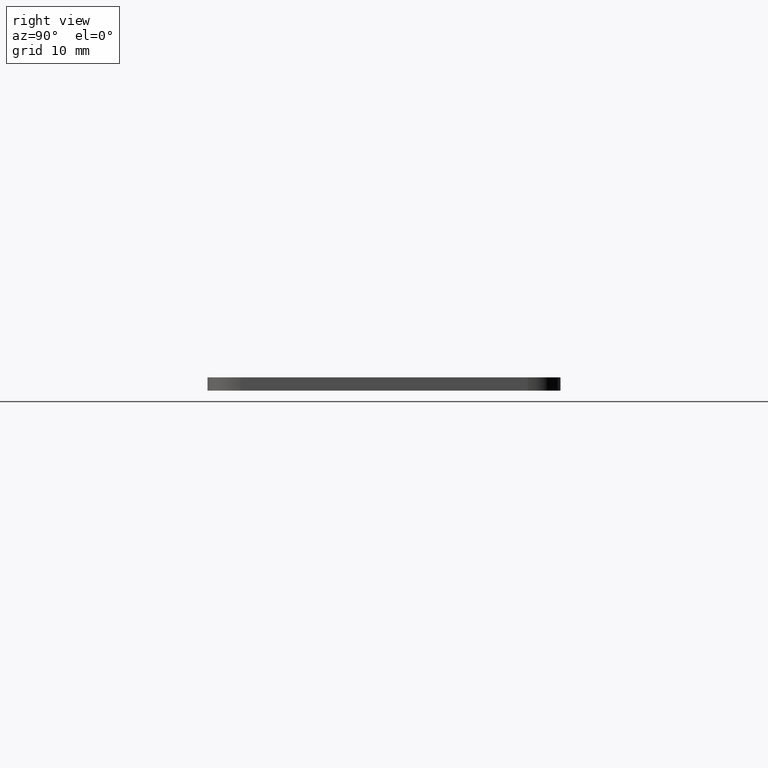
[diagram: clean part render]
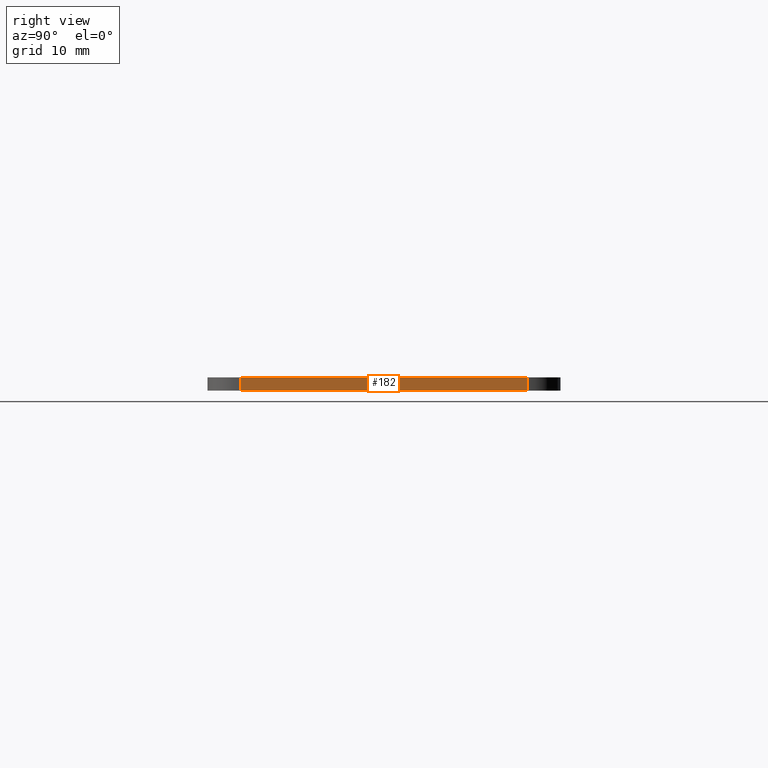
[diagram: same view with one face highlighted and labeled with its STEP entity id]
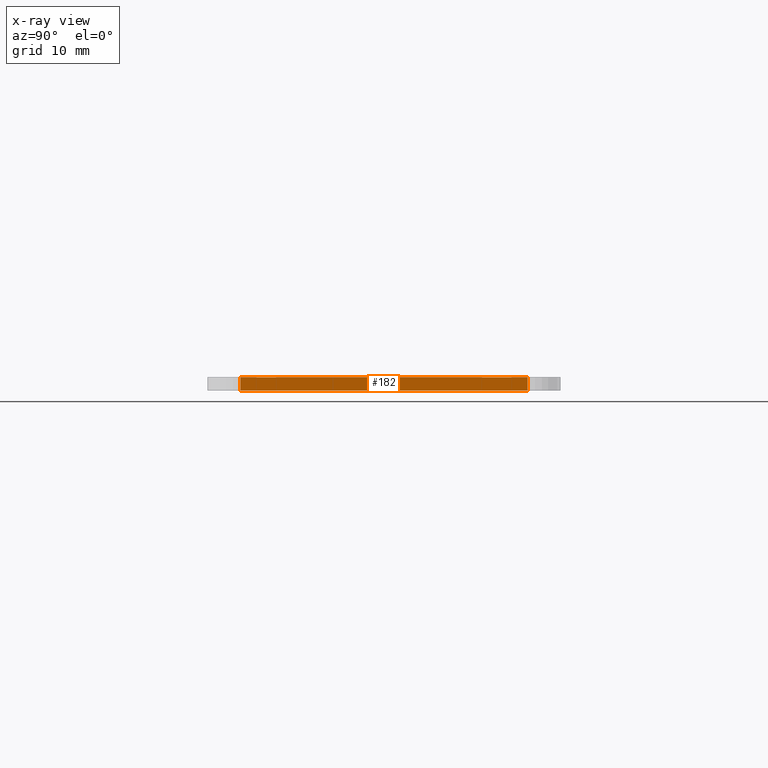
[diagram: x-ray of the same camera — body ghosted, the highlighted face saturated]
A machine part, right view. The second image highlights one B-rep face of the part: STEP entity #182.
The next image is the same camera in x-ray: the body ghosted, the highlighted face saturated — about 0% of this face is hidden behind the body in this view.
In plain terms, the highlighted planar face has unit normal (1, 0, 0).
Its self-contained STEP definition (entity closure, byte-faithful):
#155 = VERTEX_POINT('',#156);
#156 = CARTESIAN_POINT('',(78.,39.,1.60000442));
#163 = EDGE_CURVE('',#164,#155,#166,.T.);
#164 = VERTEX_POINT('',#165);
#165 = CARTESIAN_POINT('',(78.,39.,0.));
#166 = LINE('',#167,#168);
#167 = CARTESIAN_POINT('',(78.,39.,0.));
#168 = VECTOR('',#169,1.);
#169 = DIRECTION('',(0.,0.,1.));
#182 = ADVANCED_FACE('',(#183),#208,.T.);
#183 = FACE_BOUND('',#184,.T.);
#184 = EDGE_LOOP('',(#185,#186,#194,#202));
#185 = ORIENTED_EDGE('',*,*,#163,.T.);
#186 = ORIENTED_EDGE('',*,*,#187,.T.);
#187 = EDGE_CURVE('',#155,#188,#190,.T.);
#188 = VERTEX_POINT('',#189);
#189 = CARTESIAN_POINT('',(78.,4.,1.60000442));
#190 = LINE('',#191,#192);
#191 = CARTESIAN_POINT('',(78.,39.,1.60000442));
#192 = VECTOR('',#193,1.);
#193 = DIRECTION('',(0.,-1.,0.));
#194 = ORIENTED_EDGE('',*,*,#195,.F.);
#195 = EDGE_CURVE('',#196,#188,#198,.T.);
#196 = VERTEX_POINT('',#197);
#197 = CARTESIAN_POINT('',(78.,4.,0.));
#198 = LINE('',#199,#200);
#199 = CARTESIAN_POINT('',(78.,4.,0.));
#200 = VECTOR('',#201,1.);
#201 = DIRECTION('',(0.,0.,1.));
#202 = ORIENTED_EDGE('',*,*,#203,.F.);
#203 = EDGE_CURVE('',#164,#196,#204,.T.);
#204 = LINE('',#205,#206);
#205 = CARTESIAN_POINT('',(78.,39.,0.));
#206 = VECTOR('',#207,1.);
#207 = DIRECTION('',(0.,-1.,0.));
#208 = PLANE('',#209);
#209 = AXIS2_PLACEMENT_3D('',#210,#211,#212);
#210 = CARTESIAN_POINT('',(78.,39.,0.));
#211 = DIRECTION('',(1.,0.,-0.));
#212 = DIRECTION('',(0.,-1.,0.));